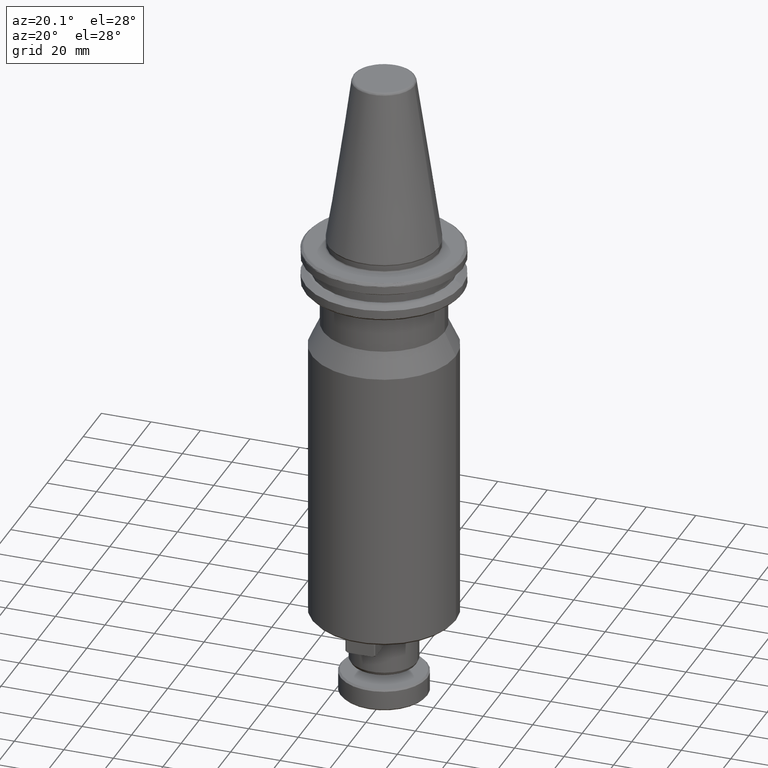
[diagram: clean part render]
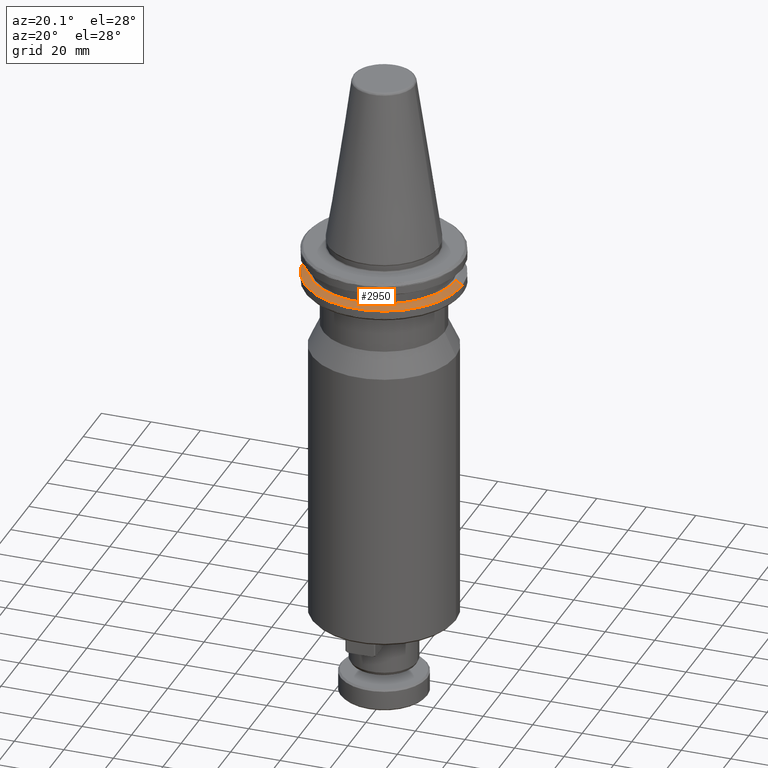
[diagram: same view with one face highlighted and labeled with its STEP entity id]
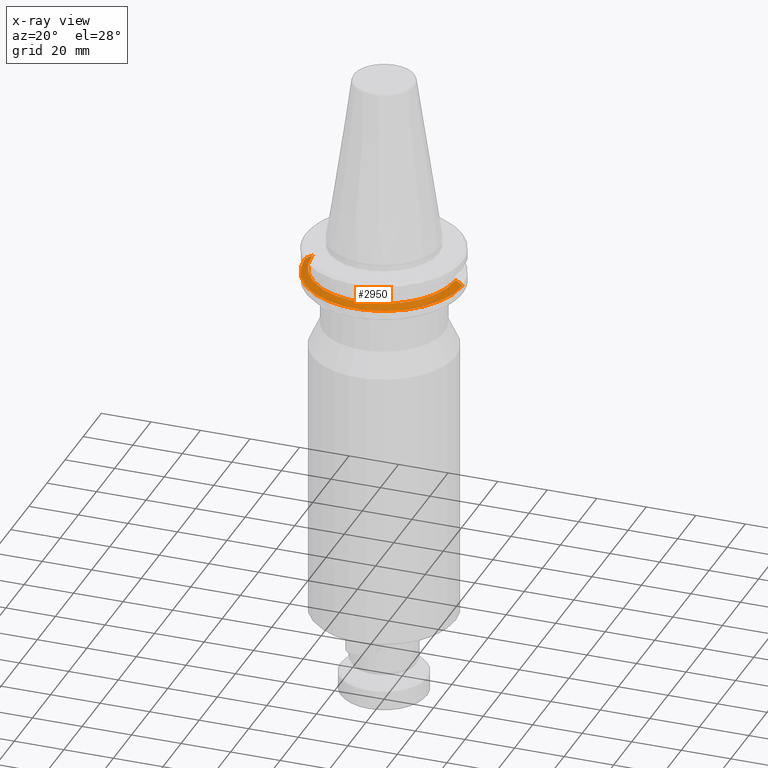
[diagram: x-ray of the same camera — body ghosted, the highlighted face saturated]
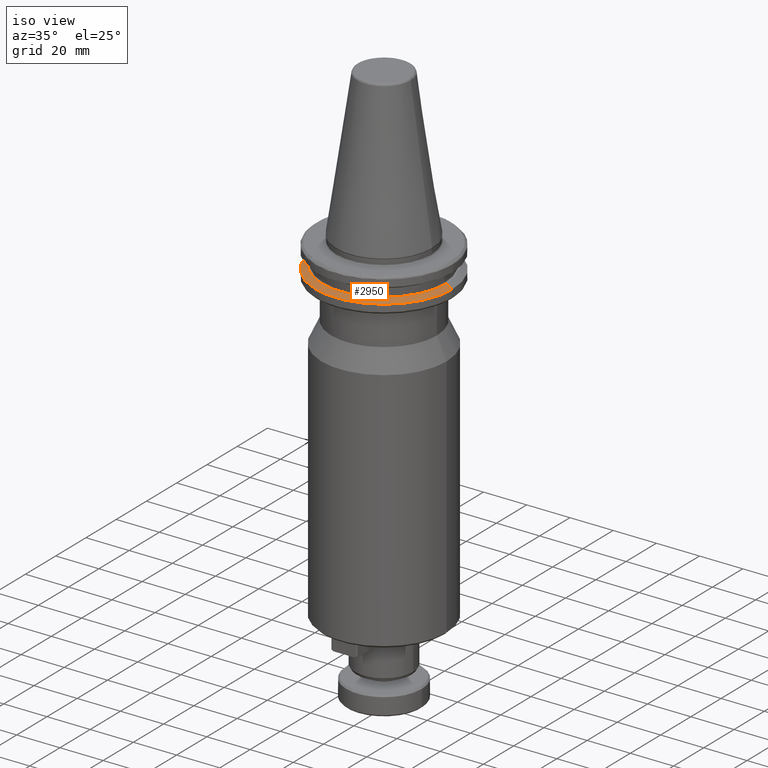
[diagram: same view with one face highlighted and labeled with its STEP entity id]
A machine part, auxiliary view. The second image highlights one B-rep face of the part: STEP entity #2950.
The next image is the same camera in x-ray: the body ghosted, the highlighted face saturated — about 0% of this face is hidden behind the body in this view.
A second angle (iso view) of the same face is appended — the face is thin or edge-on in the first view.
In plain terms, the highlighted conical surface has half-angle 60 deg.
Its self-contained STEP definition (entity closure, byte-faithful):
#4 = EDGE_CURVE ( 'NONE', #3774, #4044, #1880, .T. ) ;
#158 = FACE_OUTER_BOUND ( 'NONE', #1989, .T. ) ;
#328 = VECTOR ( 'NONE', #3382, 999.9999999999998900 ) ;
#744 = CARTESIAN_POINT ( 'NONE',  ( 0.0000000000000000000, 0.0000000000000000000, -14.62183664205671200 ) ) ;
#886 = ORIENTED_EDGE ( 'NONE', *, *, #3258, .T. ) ;
#975 = VECTOR ( 'NONE', #3327, 999.9999999999998900 ) ;
#1007 = CARTESIAN_POINT ( 'NONE',  ( -31.75000000000000000, 0.0000000000000000000, -14.62183664205671200 ) ) ;
#1077 = DIRECTION ( 'NONE',  ( 0.0000000000000000000, 0.0000000000000000000, -1.000000000000000000 ) ) ;
#1235 = ORIENTED_EDGE ( 'NONE', *, *, #3417, .T. ) ;
#1278 = VERTEX_POINT ( 'NONE', #3212 ) ;
#1508 = CARTESIAN_POINT ( 'NONE',  ( -28.94089653438085100, 0.0000000000000000000, -13.00000000000001100 ) ) ;
#1669 = AXIS2_PLACEMENT_3D ( 'NONE', #744, #3118, #2247 ) ;
#1729 = AXIS2_PLACEMENT_3D ( 'NONE', #3121, #1077, #3447 ) ;
#1880 = LINE ( 'NONE', #3283, #975 ) ;
#1989 = EDGE_LOOP ( 'NONE', ( #3157, #3765, #886, #1235 ) ) ;
#2079 = CIRCLE ( 'NONE', #1729, 28.94089653438085100 ) ;
#2247 = DIRECTION ( 'NONE',  ( -1.000000000000000000, 0.0000000000000000000, -5.463695987328526400E-017 ) ) ;
#2348 = CARTESIAN_POINT ( 'NONE',  ( 0.0000000000000000000, 0.0000000000000000000, -14.62183664205671200 ) ) ;
#2682 = DIRECTION ( 'NONE',  ( 0.0000000000000000000, 0.0000000000000000000, -1.000000000000000000 ) ) ;
#2763 = AXIS2_PLACEMENT_3D ( 'NONE', #2348, #2682, #2792 ) ;
#2792 = DIRECTION ( 'NONE',  ( -1.000000000000000000, 0.0000000000000000000, 0.0000000000000000000 ) ) ;
#2950 = ADVANCED_FACE ( 'NONE', ( #158 ), #3562, .T. ) ;
#3118 = DIRECTION ( 'NONE',  ( -0.0000000000000000000, -0.0000000000000000000, 1.000000000000000000 ) ) ;
#3121 = CARTESIAN_POINT ( 'NONE',  ( 0.0000000000000000000, 0.0000000000000000000, -13.00000000000001100 ) ) ;
#3144 = LINE ( 'NONE', #1007, #328 ) ;
#3157 = ORIENTED_EDGE ( 'NONE', *, *, #4, .F. ) ;
#3212 = CARTESIAN_POINT ( 'NONE',  ( -31.75000000000000000, 3.888253587292846500E-015, -14.62183664205671200 ) ) ;
#3258 = EDGE_CURVE ( 'NONE', #3719, #1278, #3144, .T. ) ;
#3283 = CARTESIAN_POINT ( 'NONE',  ( 31.75000000000000000, 3.888253587292846500E-015, -14.62183664205671200 ) ) ;
#3327 = DIRECTION ( 'NONE',  ( 0.8660254037844420400, 1.060575238724911000E-016, -0.4999999999999943900 ) ) ;
#3382 = DIRECTION ( 'NONE',  ( -0.8660254037844420400, 0.0000000000000000000, -0.4999999999999943900 ) ) ;
#3417 = EDGE_CURVE ( 'NONE', #1278, #4044, #4172, .T. ) ;
#3447 = DIRECTION ( 'NONE',  ( -1.000000000000000000, 0.0000000000000000000, 0.0000000000000000000 ) ) ;
#3554 = CARTESIAN_POINT ( 'NONE',  ( 28.94089653438085100, 3.716245608910635500E-015, -13.00000000000001100 ) ) ;
#3562 = CONICAL_SURFACE ( 'NONE', #2763, 31.75000000000000000, 1.047197551196604300 ) ;
#3719 = VERTEX_POINT ( 'NONE', #1508 ) ;
#3765 = ORIENTED_EDGE ( 'NONE', *, *, #3990, .T. ) ;
#3774 = VERTEX_POINT ( 'NONE', #3554 ) ;
#3793 = CARTESIAN_POINT ( 'NONE',  ( 31.75000000000000000, 0.0000000000000000000, -14.62183664205671200 ) ) ;
#3990 = EDGE_CURVE ( 'NONE', #3774, #3719, #2079, .T. ) ;
#4044 = VERTEX_POINT ( 'NONE', #3793 ) ;
#4172 = CIRCLE ( 'NONE', #1669, 31.75000000000000000 ) ;